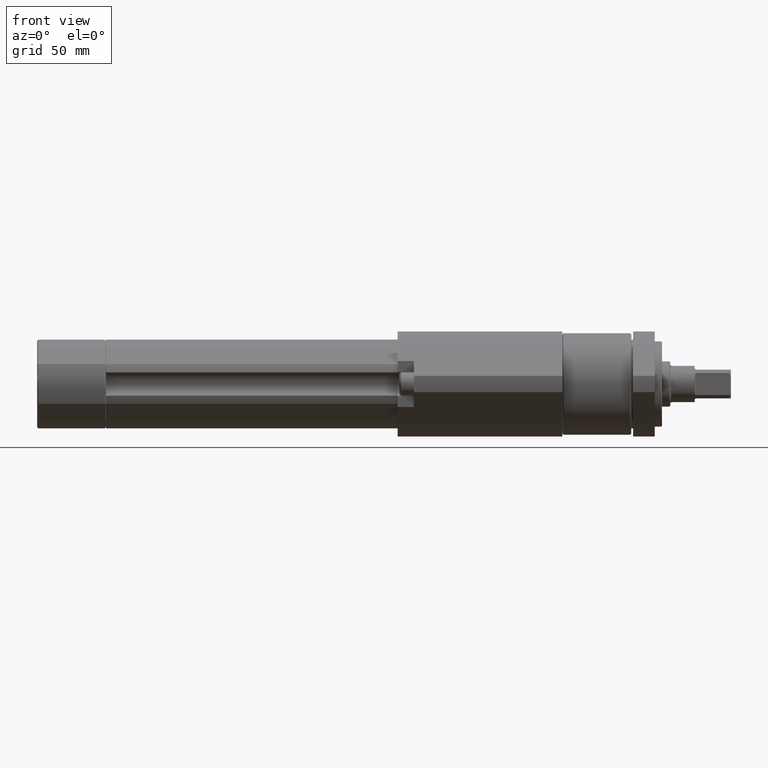
[diagram: clean part render]
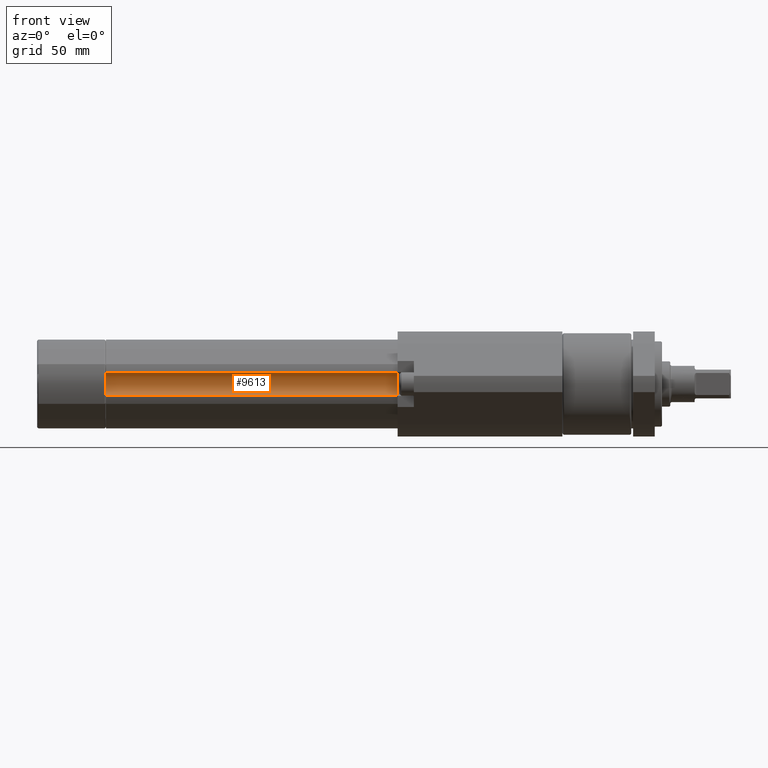
[diagram: same view with one face highlighted and labeled with its STEP entity id]
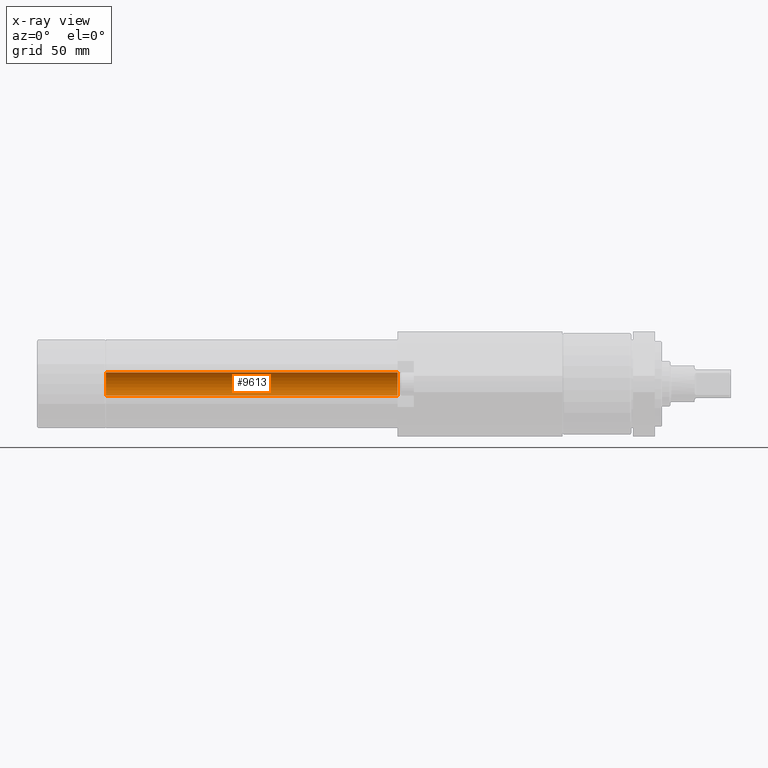
[diagram: x-ray of the same camera — body ghosted, the highlighted face saturated]
A machine part, front view. The second image highlights one B-rep face of the part: STEP entity #9613.
The next image is the same camera in x-ray: the body ghosted, the highlighted face saturated — about 0% of this face is hidden behind the body in this view.
In plain terms, the highlighted cylindrical surface (edge-blend (fillet) strip) has radius 8 mm, axis along (1, 0, 0).
Its self-contained STEP definition (entity closure, byte-faithful):
#281 = EDGE_CURVE ( 'NONE', #3995, #5850, #4374, .T. ) ;
#464 = DIRECTION ( 'NONE',  ( 1.000000000000000000, -0.0000000000000000000, -0.0000000000000000000 ) ) ;
#598 = CARTESIAN_POINT ( 'NONE',  ( -303.0000000000000000, -27.25000000000000400, -6.437196594791859500 ) ) ;
#691 = DIRECTION ( 'NONE',  ( 1.000000000000000000, -0.0000000000000000000, -0.0000000000000000000 ) ) ;
#1147 = CYLINDRICAL_SURFACE ( 'NONE', #3385, 7.999999999999992900 ) ;
#1228 = LINE ( 'NONE', #6176, #1841 ) ;
#1473 = CARTESIAN_POINT ( 'NONE',  ( -303.0000000000000000, -27.25000000000000000, 6.437196594791861200 ) ) ;
#1538 = VECTOR ( 'NONE', #3353, 1000.000000000000000 ) ;
#1746 = VERTEX_POINT ( 'NONE', #1768 ) ;
#1768 = CARTESIAN_POINT ( 'NONE',  ( -142.0000000000000000, -27.25000000000000400, -6.437196594791859500 ) ) ;
#1841 = VECTOR ( 'NONE', #464, 1000.000000000000000 ) ;
#2776 = DIRECTION ( 'NONE',  ( 1.000000000000000000, -0.0000000000000000000, -0.0000000000000000000 ) ) ;
#3080 = ORIENTED_EDGE ( 'NONE', *, *, #3462, .T. ) ;
#3142 = AXIS2_PLACEMENT_3D ( 'NONE', #6401, #691, #7381 ) ;
#3353 = DIRECTION ( 'NONE',  ( 1.000000000000000000, -0.0000000000000000000, -0.0000000000000000000 ) ) ;
#3385 = AXIS2_PLACEMENT_3D ( 'NONE', #7769, #3954, #5882 ) ;
#3391 = CARTESIAN_POINT ( 'NONE',  ( -303.0000000000000000, -27.25000000000000000, 6.437196594791861200 ) ) ;
#3462 = EDGE_CURVE ( 'NONE', #3994, #1746, #1228, .T. ) ;
#3660 = EDGE_LOOP ( 'NONE', ( #7416, #5795, #3972, #3080 ) ) ;
#3954 = DIRECTION ( 'NONE',  ( 1.000000000000000000, -0.0000000000000000000, -0.0000000000000000000 ) ) ;
#3972 = ORIENTED_EDGE ( 'NONE', *, *, #10034, .F. ) ;
#3994 = VERTEX_POINT ( 'NONE', #598 ) ;
#3995 = VERTEX_POINT ( 'NONE', #3391 ) ;
#4374 = LINE ( 'NONE', #1473, #1538 ) ;
#5795 = ORIENTED_EDGE ( 'NONE', *, *, #281, .F. ) ;
#5850 = VERTEX_POINT ( 'NONE', #8551 ) ;
#5882 = DIRECTION ( 'NONE',  ( 0.0000000000000000000, 0.0000000000000000000, -1.000000000000000000 ) ) ;
#6176 = CARTESIAN_POINT ( 'NONE',  ( -303.0000000000000000, -27.25000000000000400, -6.437196594791859500 ) ) ;
#6401 = CARTESIAN_POINT ( 'NONE',  ( -142.0000000000000000, -32.00000000000000000, 0.0000000000000000000 ) ) ;
#7381 = DIRECTION ( 'NONE',  ( 0.0000000000000000000, 0.0000000000000000000, 1.000000000000000000 ) ) ;
#7416 = ORIENTED_EDGE ( 'NONE', *, *, #9962, .T. ) ;
#7769 = CARTESIAN_POINT ( 'NONE',  ( -303.0000000000000000, -32.00000000000000000, 0.0000000000000000000 ) ) ;
#8021 = CIRCLE ( 'NONE', #8922, 7.999999999999992900 ) ;
#8332 = CIRCLE ( 'NONE', #3142, 7.999999999999992900 ) ;
#8517 = CARTESIAN_POINT ( 'NONE',  ( -303.0000000000000000, -32.00000000000000000, 0.0000000000000000000 ) ) ;
#8551 = CARTESIAN_POINT ( 'NONE',  ( -142.0000000000000000, -27.25000000000000000, 6.437196594791861200 ) ) ;
#8922 = AXIS2_PLACEMENT_3D ( 'NONE', #8517, #2776, #9475 ) ;
#9475 = DIRECTION ( 'NONE',  ( 0.0000000000000000000, 0.0000000000000000000, 1.000000000000000000 ) ) ;
#9613 = ADVANCED_FACE ( 'NONE', ( #11331 ), #1147, .F. ) ;
#9962 = EDGE_CURVE ( 'NONE', #1746, #5850, #8332, .T. ) ;
#10034 = EDGE_CURVE ( 'NONE', #3994, #3995, #8021, .T. ) ;
#11331 = FACE_OUTER_BOUND ( 'NONE', #3660, .T. ) ;